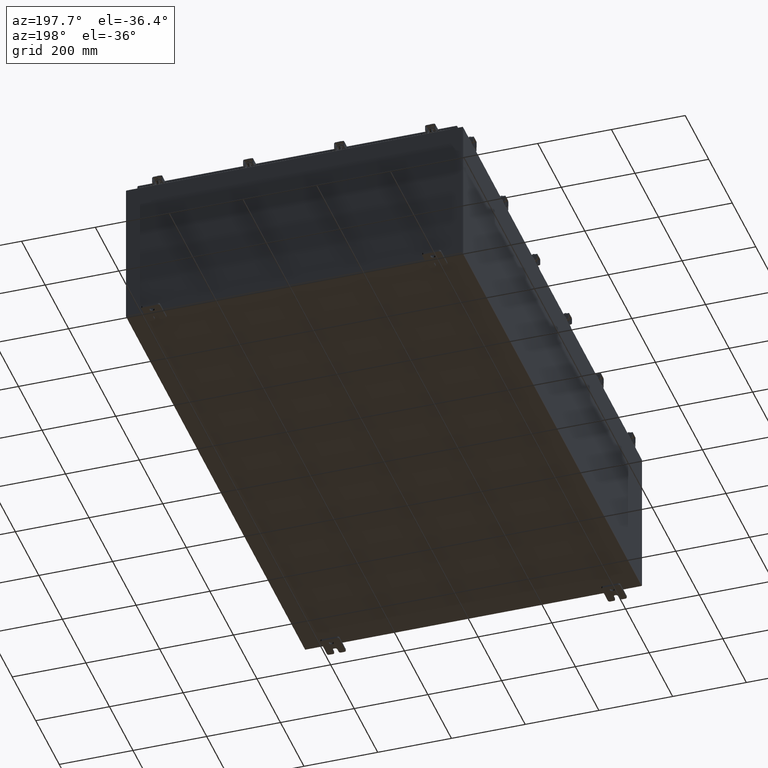
[diagram: clean part render]
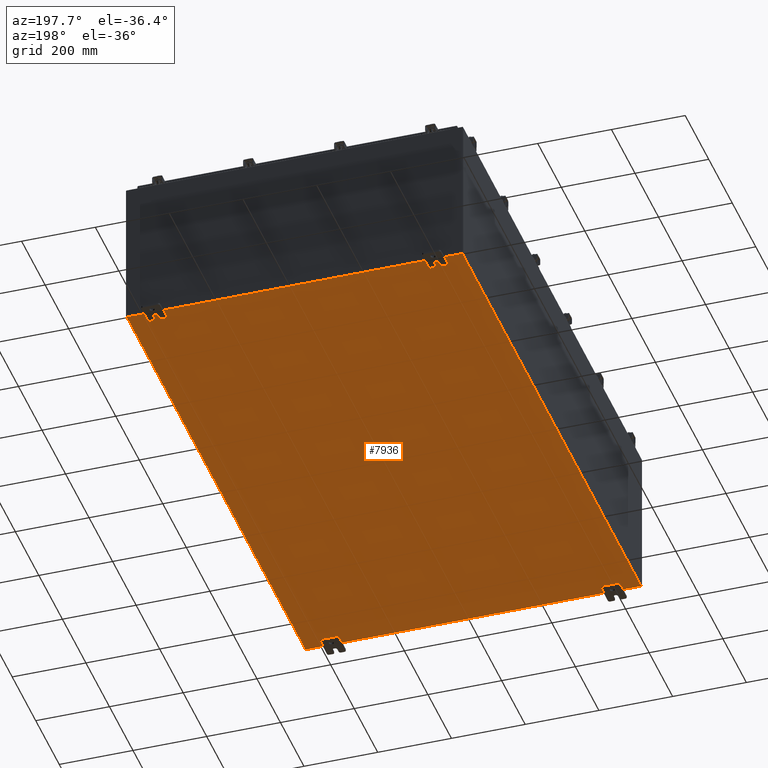
[diagram: same view with one face highlighted and labeled with its STEP entity id]
A machine part, auxiliary view. The second image highlights one B-rep face of the part: STEP entity #7936.
In plain terms, the highlighted planar face has unit normal (0, 0, -1).
Its self-contained STEP definition (entity closure, byte-faithful):
#349 = LINE ( 'NONE', #22627, #6558 ) ;
#390 = ORIENTED_EDGE ( 'NONE', *, *, #6066, .F. ) ;
#1009 = VECTOR ( 'NONE', #24481, 39.37007874015748100 ) ;
#1040 = DIRECTION ( 'NONE',  ( -1.000000000000000000, -0.0000000000000000000, -0.0000000000000000000 ) ) ;
#1347 = CARTESIAN_POINT ( 'NONE',  ( -18.00000000000000400, 29.92529999999998900, -0.07470000000000000300 ) ) ;
#3277 = VERTEX_POINT ( 'NONE', #27190 ) ;
#5859 = CARTESIAN_POINT ( 'NONE',  ( 0.0000000000000000000, 0.0000000000000000000, -0.07470000000000000300 ) ) ;
#6066 = EDGE_CURVE ( 'NONE', #20887, #3277, #15995, .T. ) ;
#6402 = EDGE_LOOP ( 'NONE', ( #26701, #23212, #390, #9523 ) ) ;
#6558 = VECTOR ( 'NONE', #7669, 39.37007874015748100 ) ;
#7669 = DIRECTION ( 'NONE',  ( 1.000000000000000000, 0.0000000000000000000, 0.0000000000000000000 ) ) ;
#7936 = ADVANCED_FACE ( 'NONE', ( #21227 ), #13543, .T. ) ;
#8396 = DIRECTION ( 'NONE',  ( -1.000000000000000000, 0.0000000000000000000, -0.0000000000000000000 ) ) ;
#9523 = ORIENTED_EDGE ( 'NONE', *, *, #22875, .T. ) ;
#11468 = CARTESIAN_POINT ( 'NONE',  ( 17.91229999999999800, 29.92529999999999300, -0.07469999999999994700 ) ) ;
#11589 = LINE ( 'NONE', #20366, #1009 ) ;
#11881 = CARTESIAN_POINT ( 'NONE',  ( -17.91230000000000200, -29.92530000000001100, -0.07469999999999994700 ) ) ;
#12819 = CARTESIAN_POINT ( 'NONE',  ( 17.91229999999999800, -29.92530000000001100, -0.07470000000000000300 ) ) ;
#13543 = PLANE ( 'NONE',  #14204 ) ;
#14204 = AXIS2_PLACEMENT_3D ( 'NONE', #5859, #19076, #8396 ) ;
#15995 = LINE ( 'NONE', #1347, #17298 ) ;
#16579 = VERTEX_POINT ( 'NONE', #11881 ) ;
#17298 = VECTOR ( 'NONE', #1040, 39.37007874015748100 ) ;
#18599 = EDGE_CURVE ( 'NONE', #16579, #3277, #25850, .T. ) ;
#18990 = CARTESIAN_POINT ( 'NONE',  ( -17.91230000000000200, -29.92530000000002100, -0.07469999999999994700 ) ) ;
#19044 = DIRECTION ( 'NONE',  ( -0.0000000000000000000, 1.000000000000000000, -0.0000000000000000000 ) ) ;
#19076 = DIRECTION ( 'NONE',  ( 0.0000000000000000000, 0.0000000000000000000, -1.000000000000000000 ) ) ;
#20132 = VECTOR ( 'NONE', #19044, 39.37007874015748100 ) ;
#20366 = CARTESIAN_POINT ( 'NONE',  ( 17.91229999999999800, 29.92529999999999300, -0.07469999999999994700 ) ) ;
#20887 = VERTEX_POINT ( 'NONE', #11468 ) ;
#21227 = FACE_OUTER_BOUND ( 'NONE', #6402, .T. ) ;
#22627 = CARTESIAN_POINT ( 'NONE',  ( -18.00000000000000400, -29.92530000000001100, -0.07470000000000000300 ) ) ;
#22875 = EDGE_CURVE ( 'NONE', #20887, #23812, #11589, .T. ) ;
#22921 = EDGE_CURVE ( 'NONE', #16579, #23812, #349, .T. ) ;
#23212 = ORIENTED_EDGE ( 'NONE', *, *, #18599, .T. ) ;
#23812 = VERTEX_POINT ( 'NONE', #12819 ) ;
#24481 = DIRECTION ( 'NONE',  ( -0.0000000000000000000, -1.000000000000000000, -0.0000000000000000000 ) ) ;
#25850 = LINE ( 'NONE', #18990, #20132 ) ;
#26701 = ORIENTED_EDGE ( 'NONE', *, *, #22921, .F. ) ;
#27190 = CARTESIAN_POINT ( 'NONE',  ( -17.91230000000000200, 29.92529999999998600, -0.07470000000000000300 ) ) ;